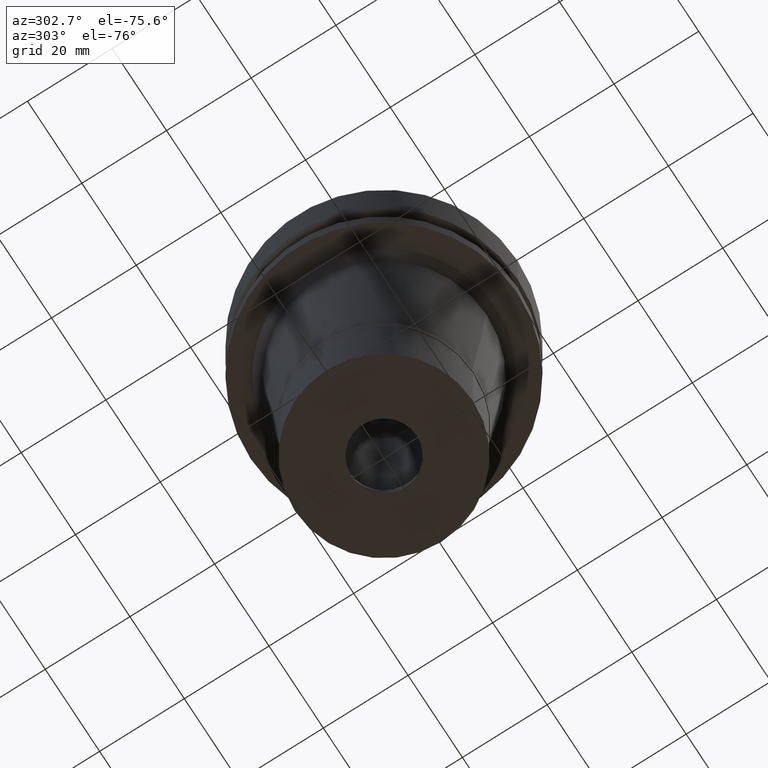
[diagram: clean part render]
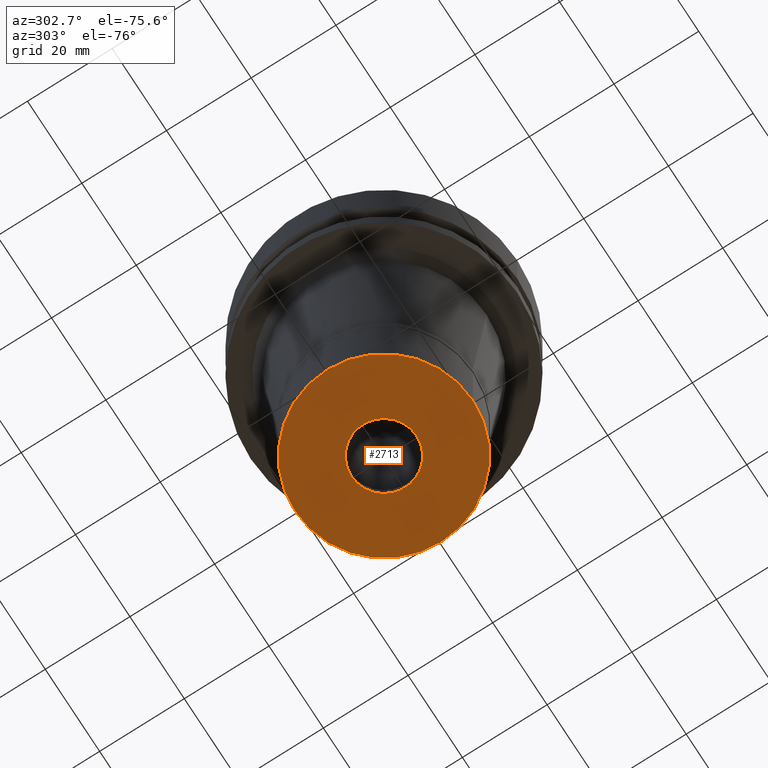
[diagram: same view with one face highlighted and labeled with its STEP entity id]
A machine part, auxiliary view. The second image highlights one B-rep face of the part: STEP entity #2713.
In plain terms, the highlighted planar face has unit normal (0, 0, -1).
Its self-contained STEP definition (entity closure, byte-faithful):
#169 = FACE_BOUND ( 'NONE', #287, .T. ) ;
#251 = VERTEX_POINT ( 'NONE', #2111 ) ;
#287 = EDGE_LOOP ( 'NONE', ( #2099, #2095 ) ) ;
#536 = CARTESIAN_POINT ( 'NONE',  ( 0.0000000000000000000, 21.00000000000000000, -24.29999999999999716 ) ) ;
#554 = EDGE_CURVE ( 'NONE', #2504, #251, #1422, .T. ) ;
#602 = AXIS2_PLACEMENT_3D ( 'NONE', #929, #2278, #1183 ) ;
#650 = VERTEX_POINT ( 'NONE', #1849 ) ;
#704 = VERTEX_POINT ( 'NONE', #2568 ) ;
#709 = CARTESIAN_POINT ( 'NONE',  ( 0.0000000000000000000, 0.0000000000000000000, -24.29999999999999716 ) ) ;
#800 = EDGE_CURVE ( 'NONE', #251, #2504, #1515, .T. ) ;
#816 = DIRECTION ( 'NONE',  ( 0.0000000000000000000, 0.0000000000000000000, 1.000000000000000000 ) ) ;
#929 = CARTESIAN_POINT ( 'NONE',  ( 0.0000000000000000000, 0.0000000000000000000, -24.29999999999999716 ) ) ;
#931 = DIRECTION ( 'NONE',  ( 0.0000000000000000000, 0.0000000000000000000, -1.000000000000000000 ) ) ;
#1020 = DIRECTION ( 'NONE',  ( 0.0000000000000000000, -1.000000000000000000, 0.0000000000000000000 ) ) ;
#1123 = ORIENTED_EDGE ( 'NONE', *, *, #800, .F. ) ;
#1183 = DIRECTION ( 'NONE',  ( 0.0000000000000000000, 1.000000000000000000, 0.0000000000000000000 ) ) ;
#1267 = FACE_OUTER_BOUND ( 'NONE', #2397, .T. ) ;
#1422 = CIRCLE ( 'NONE', #602, 21.00000000000000000 ) ;
#1464 = CARTESIAN_POINT ( 'NONE',  ( 0.0000000000000000000, 0.0000000000000000000, -24.29999999999999716 ) ) ;
#1515 = CIRCLE ( 'NONE', #1847, 21.00000000000000000 ) ;
#1595 = DIRECTION ( 'NONE',  ( 0.0000000000000000000, 0.0000000000000000000, -1.000000000000000000 ) ) ;
#1690 = CIRCLE ( 'NONE', #2030, 7.700000000000000178 ) ;
#1800 = EDGE_CURVE ( 'NONE', #704, #650, #1690, .T. ) ;
#1805 = AXIS2_PLACEMENT_3D ( 'NONE', #1464, #2791, #2821 ) ;
#1808 = DIRECTION ( 'NONE',  ( 0.0000000000000000000, 1.000000000000000000, 0.0000000000000000000 ) ) ;
#1847 = AXIS2_PLACEMENT_3D ( 'NONE', #2106, #816, #1020 ) ;
#1849 = CARTESIAN_POINT ( 'NONE',  ( 0.0000000000000000000, 7.700000000000000178, -24.29999999999999716 ) ) ;
#2029 = CARTESIAN_POINT ( 'NONE',  ( 0.0000000000000000000, 0.0000000000000000000, -24.29999999999999716 ) ) ;
#2030 = AXIS2_PLACEMENT_3D ( 'NONE', #709, #1595, #2492 ) ;
#2095 = ORIENTED_EDGE ( 'NONE', *, *, #1800, .F. ) ;
#2099 = ORIENTED_EDGE ( 'NONE', *, *, #2257, .F. ) ;
#2106 = CARTESIAN_POINT ( 'NONE',  ( 0.0000000000000000000, 0.0000000000000000000, -24.29999999999999716 ) ) ;
#2111 = CARTESIAN_POINT ( 'NONE',  ( 0.0000000000000000000, -21.00000000000000000, -24.29999999999999716 ) ) ;
#2257 = EDGE_CURVE ( 'NONE', #650, #704, #2268, .T. ) ;
#2268 = CIRCLE ( 'NONE', #2642, 7.700000000000000178 ) ;
#2278 = DIRECTION ( 'NONE',  ( 0.0000000000000000000, 0.0000000000000000000, 1.000000000000000000 ) ) ;
#2382 = ORIENTED_EDGE ( 'NONE', *, *, #554, .F. ) ;
#2388 = PLANE ( 'NONE',  #1805 ) ;
#2397 = EDGE_LOOP ( 'NONE', ( #2382, #1123 ) ) ;
#2492 = DIRECTION ( 'NONE',  ( 0.0000000000000000000, -1.000000000000000000, 0.0000000000000000000 ) ) ;
#2504 = VERTEX_POINT ( 'NONE', #536 ) ;
#2568 = CARTESIAN_POINT ( 'NONE',  ( 0.0000000000000000000, -7.700000000000000178, -24.29999999999999716 ) ) ;
#2642 = AXIS2_PLACEMENT_3D ( 'NONE', #2029, #931, #1808 ) ;
#2713 = ADVANCED_FACE ( 'NONE', ( #1267, #169 ), #2388, .T. ) ;
#2791 = DIRECTION ( 'NONE',  ( 0.0000000000000000000, 0.0000000000000000000, -1.000000000000000000 ) ) ;
#2821 = DIRECTION ( 'NONE',  ( 0.0000000000000000000, -1.000000000000000000, 0.0000000000000000000 ) ) ;